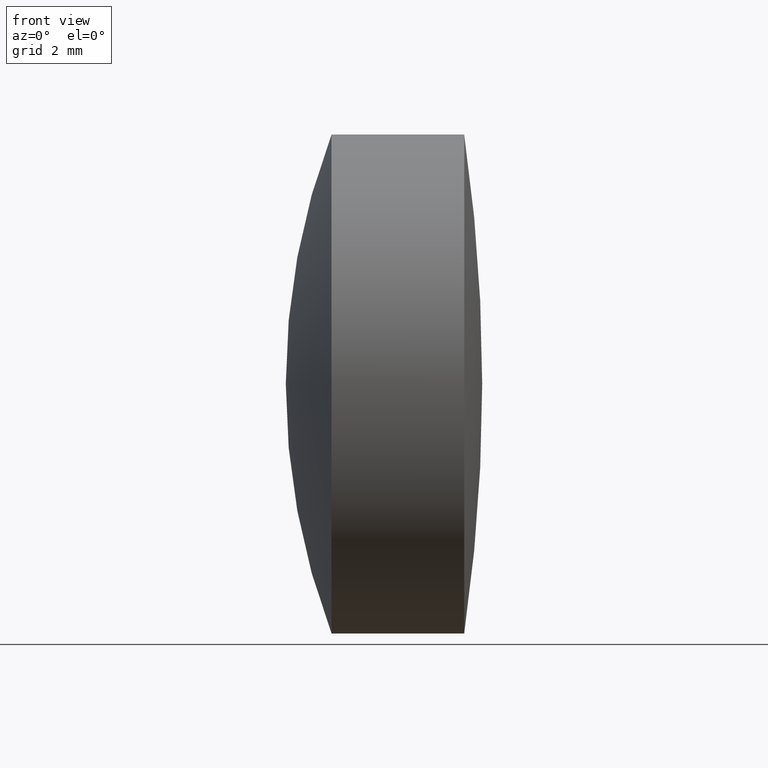
[diagram: clean part render]
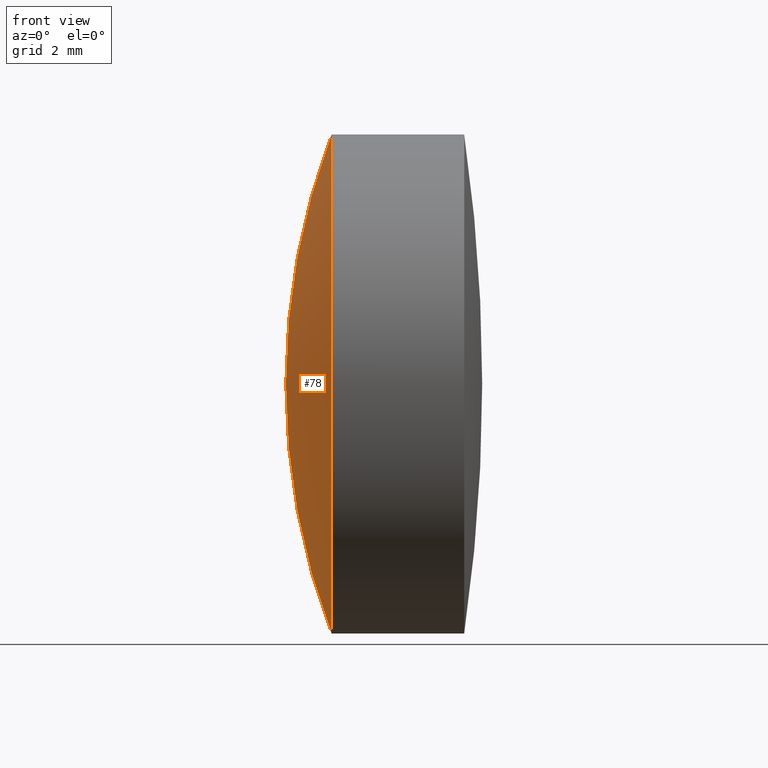
[diagram: same view with one face highlighted and labeled with its STEP entity id]
A machine part, front view. The second image highlights one B-rep face of the part: STEP entity #78.
In plain terms, the highlighted spherical surface has radius 17.9 mm.
Its self-contained STEP definition (entity closure, byte-faithful):
#5 = CARTESIAN_POINT ( 'NONE',  ( 18.77782915297076000, 0.0000000000000000000, -3.015192609939291800E-017 ) ) ;
#11 = FACE_OUTER_BOUND ( 'NONE', #289, .T. ) ;
#24 = AXIS2_PLACEMENT_3D ( 'NONE', #105, #178, #224 ) ;
#30 = VERTEX_POINT ( 'NONE', #101 ) ;
#75 = DIRECTION ( 'NONE',  ( -0.0000000000000000000, 1.000000000000000000, 1.224646799147353200E-016 ) ) ;
#78 = ADVANCED_FACE ( 'NONE', ( #11 ), #320, .T. ) ;
#92 = DIRECTION ( 'NONE',  ( 0.0000000000000000000, -1.224646799147353200E-016, 1.000000000000000000 ) ) ;
#101 = CARTESIAN_POINT ( 'NONE',  ( 2.042014263937123700, 7.776507174585694100E-016, -6.350000000000000500 ) ) ;
#105 = CARTESIAN_POINT ( 'NONE',  ( 2.042014263937123700, 0.0000000000000000000, 0.0000000000000000000 ) ) ;
#120 = VERTEX_POINT ( 'NONE', #231 ) ;
#122 = CARTESIAN_POINT ( 'NONE',  ( 18.77782915297076000, 0.0000000000000000000, -3.015192609939291800E-017 ) ) ;
#159 = EDGE_CURVE ( 'NONE', #120, #309, #335, .T. ) ;
#163 = DIRECTION ( 'NONE',  ( 0.0000000000000000000, 0.0000000000000000000, -1.000000000000000000 ) ) ;
#170 = DIRECTION ( 'NONE',  ( 0.0000000000000000000, 1.000000000000000000, 0.0000000000000000000 ) ) ;
#175 = AXIS2_PLACEMENT_3D ( 'NONE', #217, #170, #194 ) ;
#178 = DIRECTION ( 'NONE',  ( -1.000000000000000000, -0.0000000000000000000, -0.0000000000000000000 ) ) ;
#190 = ORIENTED_EDGE ( 'NONE', *, *, #249, .T. ) ;
#194 = DIRECTION ( 'NONE',  ( 0.0000000000000000000, 0.0000000000000000000, 1.000000000000000000 ) ) ;
#216 = CARTESIAN_POINT ( 'NONE',  ( 0.8778291529707611400, 0.0000000000000000000, 1.065906959137488200E-015 ) ) ;
#217 = CARTESIAN_POINT ( 'NONE',  ( 18.77782915297076000, 0.0000000000000000000, -3.015192609939291800E-017 ) ) ;
#218 = EDGE_CURVE ( 'NONE', #30, #309, #284, .T. ) ;
#224 = DIRECTION ( 'NONE',  ( 0.0000000000000000000, 0.0000000000000000000, 1.000000000000000000 ) ) ;
#231 = CARTESIAN_POINT ( 'NONE',  ( 2.042014263937123700, 0.0000000000000000000, 6.350000000000000500 ) ) ;
#249 = EDGE_CURVE ( 'NONE', #30, #120, #312, .T. ) ;
#261 = ORIENTED_EDGE ( 'NONE', *, *, #218, .F. ) ;
#284 = CIRCLE ( 'NONE', #321, 17.89999999999999900 ) ;
#289 = EDGE_LOOP ( 'NONE', ( #261, #190, #298 ) ) ;
#298 = ORIENTED_EDGE ( 'NONE', *, *, #159, .T. ) ;
#307 = DIRECTION ( 'NONE',  ( 0.0000000000000000000, -1.000000000000000000, 0.0000000000000000000 ) ) ;
#309 = VERTEX_POINT ( 'NONE', #216 ) ;
#312 = CIRCLE ( 'NONE', #24, 6.349999999999999600 ) ;
#314 = AXIS2_PLACEMENT_3D ( 'NONE', #122, #307, #163 ) ;
#320 = SPHERICAL_SURFACE ( 'NONE', #175, 17.89999999999999900 ) ;
#321 = AXIS2_PLACEMENT_3D ( 'NONE', #5, #75, #92 ) ;
#335 = CIRCLE ( 'NONE', #314, 17.89999999999999900 ) ;